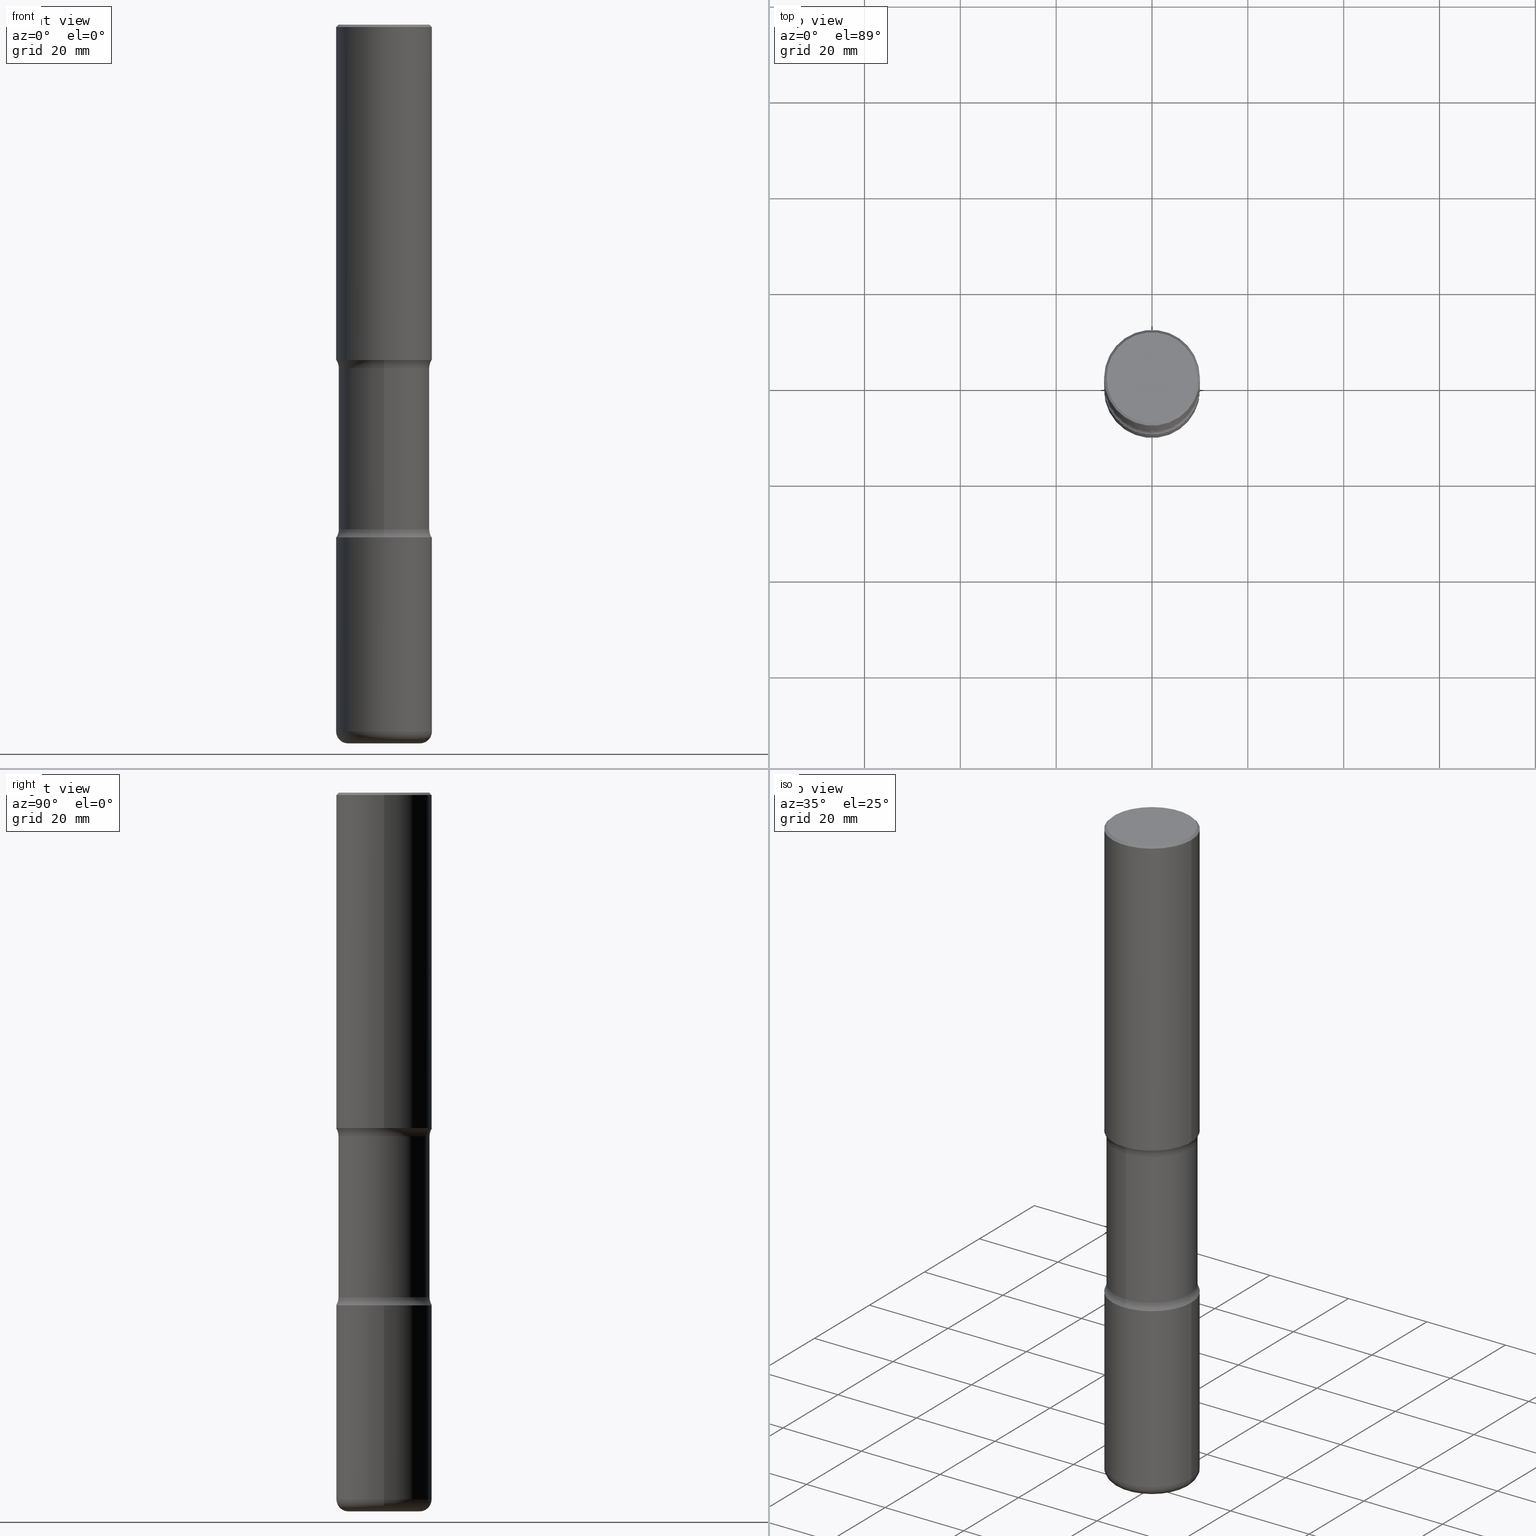
[diagram: canonical four-view strip — front | top / right | iso, engineering-drawing reading convention]
A machine part, canonical four-view strip (front | top / right | iso — engineering-drawing reading convention). The complete STEP part file that produces these views, byte-faithful:
ISO-10303-21;
HEADER;
FILE_DESCRIPTION (( 'STEP AP203' ),
    '1' );
FILE_NAME ('47752.STEP',
    '2024-03-02T08:31:55',
    ( '' ),
    ( '' ),
    'SwSTEP 2.0',
    'SolidWorks 2023',
    '' );
FILE_SCHEMA (( 'CONFIG_CONTROL_DESIGN' ));
ENDSEC;

DATA;
#1 = TOROIDAL_SURFACE ( 'NONE', #370, 0.2953000000000005620, 0.09840000000000062585 ) ;
#2 = DIRECTION ( 'NONE',  ( -2.445468806185136597E-29, 3.491481338843145583E-15, 1.000000000000000000 ) ) ;
#3 = VECTOR ( 'NONE', #381, 39.37007874015748143 ) ;
#4 = ORIENTED_EDGE ( 'NONE', *, *, #406, .T. ) ;
#5 = ORIENTED_EDGE ( 'NONE', *, *, #240, .T. ) ;
#6 = CARTESIAN_POINT ( 'NONE',  ( 0.3936999999999999389, -2.770807688499514945E-15, -0.02000000000000010103 ) ) ;
#7 = VERTEX_POINT ( 'NONE', #16 ) ;
#8 = CC_DESIGN_DATE_AND_TIME_ASSIGNMENT ( #328, #404, ( #331 ) ) ;
#9 = AXIS2_PLACEMENT_3D ( 'NONE', #478, #468, #86 ) ;
#10 = FACE_OUTER_BOUND ( 'NONE', #32, .T. ) ;
#11 = VECTOR ( 'NONE', #540, 39.37007874015748143 ) ;
#12 = ORIENTED_EDGE ( 'NONE', *, *, #421, .T. ) ;
#13 = APPROVAL_STATUS ( 'not_yet_approved' ) ;
#14 = DATE_TIME_ROLE ( 'classification_date' ) ;
#15 = CARTESIAN_POINT ( 'NONE',  ( 2.749192406205187346E-15, 0.3936999999999854505, -4.212600000000000122 ) ) ;
#16 = CARTESIAN_POINT ( 'NONE',  ( -0.3736999999999999211, 2.644447966039788269E-15, 8.537024980182450727E-18 ) ) ;
#17 = ADVANCED_FACE ( 'NONE', ( #305 ), #482, .T. ) ;
#18 = FACE_OUTER_BOUND ( 'NONE', #162, .T. ) ;
#19 = CARTESIAN_POINT ( 'NONE',  ( 1.420108190439770332E-28, -2.027538128279602429E-14, -5.807099999999998374 ) ) ;
#20 = AXIS2_PLACEMENT_3D ( 'NONE', #300, #429, #132 ) ;
#21 = LOCAL_TIME ( 3, 31, 55.00000000000000000, #501 ) ;
#22 = DIRECTION ( 'NONE',  ( 2.499563752616943710E-29, -3.414014296659653741E-15, -1.000000000000000000 ) ) ;
#23 = PERSON_AND_ORGANIZATION ( #36, #419 ) ;
#24 = ADVANCED_FACE ( 'NONE', ( #448 ), #1, .T. ) ;
#25 = CARTESIAN_POINT ( 'NONE',  ( -0.3937000000000002720, -2.048594773559823141E-15, -2.755899999999998240 ) ) ;
#26 = CARTESIAN_POINT ( 'NONE',  ( -2.700978061722587749E-15, -0.3937000000000100419, -2.755899999999997352 ) ) ;
#27 = EDGE_CURVE ( 'NONE', #341, #522, #338, .T. ) ;
#28 = AXIS2_PLACEMENT_3D ( 'NONE', #261, #219, #271 ) ;
#29 = ORIENTED_EDGE ( 'NONE', *, *, #394, .F. ) ;
#30 = DIRECTION ( 'NONE',  ( -1.000000000000000000, 6.982962677686265922E-15, -4.883557194083112340E-29 ) ) ;
#31 = EDGE_CURVE ( 'NONE', #7, #296, #190, .T. ) ;
#32 = EDGE_LOOP ( 'NONE', ( #332, #211, #392, #434 ) ) ;
#33 = DIRECTION ( 'NONE',  ( 2.499563752616943710E-29, -3.414014296659653741E-15, -1.000000000000000000 ) ) ;
#34 = ORIENTED_EDGE ( 'NONE', *, *, #469, .T. ) ;
#35 = DIRECTION ( 'NONE',  ( -2.445468806185136597E-29, 3.491481338843145583E-15, 1.000000000000000000 ) ) ;
#36 = PERSON ( 'UNSPECIFIED', 'UNSPECIFIED', 'UNSPECIFIED', ('UNSPECIFIED'), ('UNSPECIFIED'), ('UNSPECIFIED') ) ;
#37 = CARTESIAN_POINT ( 'NONE',  ( 1.030178189293550378E-28, -1.470821428801063089E-14, -4.212599999999998346 ) ) ;
#38 = CIRCLE ( 'NONE', #354, 0.1249999999999998335 ) ;
#39 = APPROVAL_PERSON_ORGANIZATION ( #193, #517, #56 ) ;
#40 = CARTESIAN_POINT ( 'NONE',  ( -0.2953000000000005620, -1.799934243997356436E-14, -5.905499999999999972 ) ) ;
#41 = ORIENTED_EDGE ( 'NONE', *, *, #58, .F. ) ;
#42 = DIRECTION ( 'NONE',  ( -2.445468806185136877E-29, 3.491481338843145188E-15, 1.000000000000000000 ) ) ;
#43 = CC_DESIGN_PERSON_AND_ORGANIZATION_ASSIGNMENT ( #154, #359, ( #331 ) ) ;
#44 = EDGE_LOOP ( 'NONE', ( #135, #88, #347, #29 ) ) ;
#45 = AXIS2_PLACEMENT_3D ( 'NONE', #401, #183, #460 ) ;
#46 = EDGE_LOOP ( 'NONE', ( #204, #87 ) ) ;
#47 = DIRECTION ( 'NONE',  ( 2.445468806185136597E-29, -3.491481338843145583E-15, -1.000000000000000000 ) ) ;
#48 = ORIENTED_EDGE ( 'NONE', *, *, #170, .F. ) ;
#49 = ADVANCED_FACE ( 'NONE', ( #62 ), #275, .T. ) ;
#50 = CARTESIAN_POINT ( 'NONE',  ( 1.420108190439770332E-28, -2.027538128279602429E-14, -5.807099999999998374 ) ) ;
#51 = DIRECTION ( 'NONE',  ( -2.445468806185136597E-29, 3.491481338843145583E-15, 1.000000000000000000 ) ) ;
#52 = VERTEX_POINT ( 'NONE', #145 ) ;
#53 = CLOSED_SHELL ( 'NONE', ( #130, #207, #153, #292, #110, #508, #514, #92 ) ) ;
#54 = AXIS2_PLACEMENT_3D ( 'NONE', #50, #2, #144 ) ;
#55 = PLANE ( 'NONE',  #263 ) ;
#56 = APPROVAL_ROLE ( '' ) ;
#57 = DIRECTION ( 'NONE',  ( 2.438088387897960049E-29, -3.491481338843145188E-15, -1.000000000000000000 ) ) ;
#58 = EDGE_CURVE ( 'NONE', #335, #483, #198, .T. ) ;
#59 = DIRECTION ( 'NONE',  ( 6.982962677686266711E-15, 1.000000000000000000, -2.921762560068729411E-15 ) ) ;
#60 = DATE_AND_TIME ( #147, #476 ) ;
#61 = DIRECTION ( 'NONE',  ( 1.000000000000000000, -6.860497997771530774E-15, 4.841747577276637457E-29 ) ) ;
#62 = FACE_OUTER_BOUND ( 'NONE', #427, .T. ) ;
#63 = APPROVAL_STATUS ( 'not_yet_approved' ) ;
#64 = CARTESIAN_POINT ( 'NONE',  ( 1.030178189293550378E-28, -1.470821428801063089E-14, -4.212599999999998346 ) ) ;
#65 = CARTESIAN_POINT ( 'NONE',  ( -2.087702828670439639E-46, 2.980686340760894400E-32, 8.537024980200822558E-18 ) ) ;
#66 = AXIS2_PLACEMENT_3D ( 'NONE', #222, #98, #397 ) ;
#67 = AXIS2_PLACEMENT_3D ( 'NONE', #387, #311, #438 ) ;
#68 = DIRECTION ( 'NONE',  ( -2.445468806185136597E-29, 3.491481338843145583E-15, 1.000000000000000000 ) ) ;
#69 = PERSON_AND_ORGANIZATION ( #36, #419 ) ;
#70 = ADVANCED_FACE ( 'NONE', ( #10 ), #346, .T. ) ;
#71 = VERTEX_POINT ( 'NONE', #356 ) ;
#72 = PRODUCT_DEFINITION_SHAPE ( 'NONE', 'NONE',  #331 ) ;
#73 = AXIS2_PLACEMENT_3D ( 'NONE', #320, #51, #544 ) ;
#74 = EDGE_LOOP ( 'NONE', ( #353, #473, #471, #169 ) ) ;
#75 = CC_DESIGN_APPROVAL ( #497, ( #264 ) ) ;
#76 = MANIFOLD_SOLID_BREP ( 'Body-Move/Copy2[4]', #53 ) ;
#77 = CARTESIAN_POINT ( 'NONE',  ( 2.611628041454809941E-15, 0.3739999999999796820, -5.905499999999999972 ) ) ;
#78 = CARTESIAN_POINT ( 'NONE',  ( 6.856494937320590076E-29, -9.925643892983175518E-15, -2.823256588393414201 ) ) ;
#79 = EDGE_CURVE ( 'NONE', #137, #158, #466, .T. ) ;
#80 = ORIENTED_EDGE ( 'NONE', *, *, #27, .F. ) ;
#81 = DIRECTION ( 'NONE',  ( 1.000000000000000000, -6.982962677686266711E-15, 4.876176775795935793E-29 ) ) ;
#82 = CARTESIAN_POINT ( 'NONE',  ( 1.013706345712835491E-28, -1.447304001658688186E-14, -4.145243411606583273 ) ) ;
#83 =( CONVERSION_BASED_UNIT ( 'INCH', #474 ) LENGTH_UNIT ( ) NAMED_UNIT ( #442 ) );
#84 = AXIS2_PLACEMENT_3D ( 'NONE', #160, #462, #417 ) ;
#85 = EDGE_CURVE ( 'NONE', #113, #52, #291, .T. ) ;
#86 = DIRECTION ( 'NONE',  ( 6.982962677686266711E-15, 1.000000000000000000, -2.921762560068729411E-15 ) ) ;
#87 = ORIENTED_EDGE ( 'NONE', *, *, #127, .F. ) ;
#88 = ORIENTED_EDGE ( 'NONE', *, *, #127, .T. ) ;
#89 = ORIENTED_EDGE ( 'NONE', *, *, #85, .F. ) ;
#90 = CARTESIAN_POINT ( 'NONE',  ( 0.3937000000000002720, -1.745740669421571411E-14, -4.212599999999998346 ) ) ;
#91 = AXIS2_PLACEMENT_3D ( 'NONE', #435, #395, #484 ) ;
#92 = ADVANCED_FACE ( 'NONE', ( #451 ), #546, .T. ) ;
#93 = ORIENTED_EDGE ( 'NONE', *, *, #58, .T. ) ;
#94 = CARTESIAN_POINT ( 'NONE',  ( 6.660667374498401538E-29, -9.735019662066511300E-15, -2.755899999999998240 ) ) ;
#95 = ORIENTED_EDGE ( 'NONE', *, *, #324, .T. ) ;
#96 = DIRECTION ( 'NONE',  ( 2.438088387897960049E-29, -3.491481338843145188E-15, -1.000000000000000000 ) ) ;
#97 = FACE_OUTER_BOUND ( 'NONE', #46, .T. ) ;
#98 = DIRECTION ( 'NONE',  ( 2.499563752616943710E-29, -3.414014296659653741E-15, -1.000000000000000000 ) ) ;
#99 = FACE_OUTER_BOUND ( 'NONE', #115, .T. ) ;
#100 = DIRECTION ( 'NONE',  ( 1.000000000000000000, 0.000000000000000000, 0.000000000000000000 ) ) ;
#101 = CARTESIAN_POINT ( 'NONE',  ( 6.739467482965614869E-29, -9.622173421717819657E-15, -2.755899999999998240 ) ) ;
#102 = PLANE ( 'NONE',  #301 ) ;
#103 = AXIS2_PLACEMENT_3D ( 'NONE', #269, #447, #224 ) ;
#104 = VECTOR ( 'NONE', #177, 39.37007874015748143 ) ;
#105 = CALENDAR_DATE ( 2024, 2, 3 ) ;
#106 = CARTESIAN_POINT ( 'NONE',  ( -2.633402156444536217E-15, -0.3740000000000101577, -2.823256588393413313 ) ) ;
#107 = COORDINATED_UNIVERSAL_TIME_OFFSET ( 5, 0, .BEHIND. ) ;
#108 = AXIS2_PLACEMENT_3D ( 'NONE', #534, #315, #493 ) ;
#109 = CIRCLE ( 'NONE', #91, 0.1249999999999999029 ) ;
#110 = ADVANCED_FACE ( 'NONE', ( #99 ), #55, .F. ) ;
#111 = CALENDAR_DATE ( 2024, 2, 3 ) ;
#112 = DESIGN_CONTEXT ( 'detailed design', #426, 'design' ) ;
#113 = VERTEX_POINT ( 'NONE', #358 ) ;
#114 = APPROVAL ( #13, 'UNSPECIFIED' ) ;
#115 = EDGE_LOOP ( 'NONE', ( #41, #436 ) ) ;
#116 = CARTESIAN_POINT ( 'NONE',  ( 1.030178189293550378E-28, -1.470821428801063089E-14, -4.212599999999998346 ) ) ;
#117 = ADVANCED_FACE ( 'NONE', ( #407 ), #229, .T. ) ;
#118 = FACE_OUTER_BOUND ( 'NONE', #477, .T. ) ;
#119 = AXIS2_PLACEMENT_3D ( 'NONE', #208, #171, #294 ) ;
#120 = EDGE_LOOP ( 'NONE', ( #95, #532 ) ) ;
#121 = AXIS2_PLACEMENT_3D ( 'NONE', #64, #369, #228 ) ;
#122 = CARTESIAN_POINT ( 'NONE',  ( 2.611628041454766160E-15, 0.3739999999999856772, -4.145243411606584161 ) ) ;
#123 = CARTESIAN_POINT ( 'NONE',  ( 1.013341980608738414E-28, -1.447825793226129018E-14, -4.145243411606583273 ) ) ;
#124 = EDGE_CURVE ( 'NONE', #166, #350, #156, .T. ) ;
#125 = ORIENTED_EDGE ( 'NONE', *, *, #326, .T. ) ;
#126 = CARTESIAN_POINT ( 'NONE',  ( -0.3937000000000003830, 2.797406750687517153E-15, -1.936584745033358137E-29 ) ) ;
#127 = EDGE_CURVE ( 'NONE', #158, #137, #138, .T. ) ;
#128 = CARTESIAN_POINT ( 'NONE',  ( 2.611628041454733028E-15, 0.3739999999999901736, -2.823256588393415534 ) ) ;
#129 = ORIENTED_EDGE ( 'NONE', *, *, #186, .T. ) ;
#130 = ADVANCED_FACE ( 'NONE', ( #134 ), #463, .T. ) ;
#131 = AXIS2_PLACEMENT_3D ( 'NONE', #548, #155, #237 ) ;
#132 = DIRECTION ( 'NONE',  ( 1.000000000000000000, -6.982962677686257244E-15, 0.000000000000000000 ) ) ;
#133 = ORIENTED_EDGE ( 'NONE', *, *, #550, .F. ) ;
#134 = FACE_OUTER_BOUND ( 'NONE', #380, .T. ) ;
#135 = ORIENTED_EDGE ( 'NONE', *, *, #469, .F. ) ;
#136 = CARTESIAN_POINT ( 'NONE',  ( -2.700978061722549884E-15, -0.3937000000000149269, -4.212599999999997458 ) ) ;
#137 = VERTEX_POINT ( 'NONE', #316 ) ;
#138 = CIRCLE ( 'NONE', #45, 0.3937000000000002164 ) ;
#139 = DIRECTION ( 'NONE',  ( 1.000000000000000000, -6.982962677686266711E-15, 4.876212485538976239E-29 ) ) ;
#140 = ADVANCED_BREP_SHAPE_REPRESENTATION ( '47752', ( #245, #257, #76, #181 ), #521 ) ;
#141 = CONICAL_SURFACE ( 'NONE', #531, 0.3936999999999999389, 0.7853981633974471688 ) ;
#142 = DIRECTION ( 'NONE',  ( 2.499563752616943710E-29, -3.414014296659653741E-15, -1.000000000000000000 ) ) ;
#143 = ORIENTED_EDGE ( 'NONE', *, *, #485, .F. ) ;
#144 = DIRECTION ( 'NONE',  ( 1.000000000000000000, -6.982962677686269866E-15, 0.000000000000000000 ) ) ;
#145 = CARTESIAN_POINT ( 'NONE',  ( -0.3936999999999999389, 2.679362779428219524E-15, -0.02000000000000010103 ) ) ;
#146 = DIRECTION ( 'NONE',  ( 6.982962677686266711E-15, 1.000000000000000000, -2.921762560068729411E-15 ) ) ;
#147 = CALENDAR_DATE ( 2024, 2, 3 ) ;
#148 = CARTESIAN_POINT ( 'NONE',  ( -2.565826251166408560E-15, -0.3740000000000206493, -5.905499999999997307 ) ) ;
#149 = PERSON_AND_ORGANIZATION ( #36, #419 ) ;
#150 = CIRCLE ( 'NONE', #486, 0.3937000000000004940 ) ;
#151 = TOROIDAL_SURFACE ( 'NONE', #439, 0.4990000000000002212, 0.1249999999999998751 ) ;
#152 = PERSON_AND_ORGANIZATION_ROLE ( 'classification_officer' ) ;
#153 = ADVANCED_FACE ( 'NONE', ( #494 ), #389, .F. ) ;
#154 = PERSON_AND_ORGANIZATION ( #36, #419 ) ;
#155 = DIRECTION ( 'NONE',  ( -2.445468806185136597E-29, 3.491481338843145583E-15, 1.000000000000000000 ) ) ;
#156 = CIRCLE ( 'NONE', #103, 0.09840000000000061198 ) ;
#157 = CONICAL_SURFACE ( 'NONE', #167, 0.3936999999999999389, 0.7853981633974471688 ) ;
#158 = VERTEX_POINT ( 'NONE', #25 ) ;
#159 = EDGE_CURVE ( 'NONE', #461, #350, #150, .T. ) ;
#160 = CARTESIAN_POINT ( 'NONE',  ( 1.444171603492632270E-28, -2.061894304653819197E-14, -5.905499999999999972 ) ) ;
#161 = DIRECTION ( 'NONE',  ( -1.000000000000000000, 6.982962677686265922E-15, -4.876176775795935793E-29 ) ) ;
#162 = EDGE_LOOP ( 'NONE', ( #349, #254 ) ) ;
#163 = ADVANCED_FACE ( 'NONE', ( #553 ), #342, .F. ) ;
#164 = CARTESIAN_POINT ( 'NONE',  ( 1.030178189293550378E-28, -1.470821428801063089E-14, -4.212599999999998346 ) ) ;
#165 = AXIS2_PLACEMENT_3D ( 'NONE', #65, #453, #456 ) ;
#166 = VERTEX_POINT ( 'NONE', #40 ) ;
#167 = AXIS2_PLACEMENT_3D ( 'NONE', #248, #255, #251 ) ;
#168 = CARTESIAN_POINT ( 'NONE',  ( 1.444171603492632270E-28, -2.061894304653819197E-14, -5.905499999999999972 ) ) ;
#169 = ORIENTED_EDGE ( 'NONE', *, *, #535, .F. ) ;
#170 = EDGE_CURVE ( 'NONE', #166, #71, #180, .T. ) ;
#171 = DIRECTION ( 'NONE',  ( 2.499563752616943710E-29, -3.414014296659653741E-15, -1.000000000000000000 ) ) ;
#172 = EDGE_LOOP ( 'NONE', ( #217, #12 ) ) ;
#173 = AXIS2_PLACEMENT_3D ( 'NONE', #221, #265, #218 ) ;
#174 = PLANE ( 'NONE',  #235 ) ;
#175 = ORIENTED_EDGE ( 'NONE', *, *, #333, .F. ) ;
#176 = ORIENTED_EDGE ( 'NONE', *, *, #406, .F. ) ;
#177 = DIRECTION ( 'NONE',  ( 0.7071067811865466846, -7.319954787623252890E-15, -0.7071067811865483499 ) ) ;
#178 = ORIENTED_EDGE ( 'NONE', *, *, #368, .T. ) ;
#179 = AXIS2_PLACEMENT_3D ( 'NONE', #410, #22, #59 ) ;
#180 = CIRCLE ( 'NONE', #215, 0.2953000000000005620 ) ;
#181 = AXIS2_PLACEMENT_3D ( 'NONE', #454, #280, #100 ) ;
#182 = VERTEX_POINT ( 'NONE', #128 ) ;
#183 = DIRECTION ( 'NONE',  ( -2.445468806185136597E-29, 3.491481338843145583E-15, 1.000000000000000000 ) ) ;
#184 = CALENDAR_DATE ( 2024, 2, 3 ) ;
#185 = FACE_OUTER_BOUND ( 'NONE', #306, .T. ) ;
#186 = EDGE_CURVE ( 'NONE', #522, #560, #505, .T. ) ;
#187 = DATE_AND_TIME ( #184, #210 ) ;
#188 = PLANE ( 'NONE',  #121 ) ;
#189 = DIRECTION ( 'NONE',  ( 2.499563752616943710E-29, -3.414014296659653741E-15, -1.000000000000000000 ) ) ;
#190 = CIRCLE ( 'NONE', #165, 0.3736999999999999211 ) ;
#191 = DIRECTION ( 'NONE',  ( 1.000000000000000000, -6.860497997771530774E-15, 4.841747577276637457E-29 ) ) ;
#192 = CIRCLE ( 'NONE', #310, 0.3937000000000002720 ) ;
#193 = PERSON_AND_ORGANIZATION ( #36, #419 ) ;
#194 = EDGE_CURVE ( 'NONE', #560, #522, #378, .T. ) ;
#195 = MECHANICAL_CONTEXT ( 'NONE', #209, 'mechanical' ) ;
#196 = CARTESIAN_POINT ( 'NONE',  ( 6.856494937320590076E-29, -9.925643892983175518E-15, -2.823256588393414201 ) ) ;
#197 = CARTESIAN_POINT ( 'NONE',  ( -3.423388500887925735E-15, -0.4990000000000099356, -2.823256588393412425 ) ) ;
#198 = CIRCLE ( 'NONE', #66, 0.3937000000000004385 ) ;
#199 = EDGE_CURVE ( 'NONE', #71, #461, #541, .T. ) ;
#200 = ORIENTED_EDGE ( 'NONE', *, *, #481, .T. ) ;
#201 = ORIENTED_EDGE ( 'NONE', *, *, #324, .F. ) ;
#202 = DIRECTION ( 'NONE',  ( 6.982962677686265922E-15, 1.000000000000000000, -3.414014296659653741E-15 ) ) ;
#203 = TOROIDAL_SURFACE ( 'NONE', #529, 0.4990000000000002212, 0.1249999999999998751 ) ;
#204 = ORIENTED_EDGE ( 'NONE', *, *, #79, .F. ) ;
#205 = CIRCLE ( 'NONE', #379, 0.1249999999999998335 ) ;
#206 = DIRECTION ( 'NONE',  ( 6.982962677686265922E-15, 1.000000000000000000, -2.775563112689114723E-15 ) ) ;
#207 = ADVANCED_FACE ( 'NONE', ( #303 ), #203, .F. ) ;
#208 = CARTESIAN_POINT ( 'NONE',  ( 1.030178189293550378E-28, -1.470821428801063089E-14, -4.212599999999998346 ) ) ;
#209 = APPLICATION_CONTEXT ( 'configuration controlled 3d designs of mechanical parts and assemblies' ) ;
#210 = LOCAL_TIME ( 3, 31, 55.00000000000000000, #408 ) ;
#211 = ORIENTED_EDGE ( 'NONE', *, *, #124, .T. ) ;
#212 = DIRECTION ( 'NONE',  ( -2.445468806185136597E-29, 3.491481338843145583E-15, 1.000000000000000000 ) ) ;
#213 = ORIENTED_EDGE ( 'NONE', *, *, #31, .F. ) ;
#214 = ORIENTED_EDGE ( 'NONE', *, *, #124, .F. ) ;
#215 = AXIS2_PLACEMENT_3D ( 'NONE', #168, #212, #520 ) ;
#216 = CIRCLE ( 'NONE', #67, 0.3937000000000002720 ) ;
#217 = ORIENTED_EDGE ( 'NONE', *, *, #31, .T. ) ;
#218 = DIRECTION ( 'NONE',  ( 1.000000000000000000, -6.982962677686266711E-15, 0.000000000000000000 ) ) ;
#219 = DIRECTION ( 'NONE',  ( -2.445468806185136597E-29, 3.491481338843145583E-15, 1.000000000000000000 ) ) ;
#220 = ORIENTED_EDGE ( 'NONE', *, *, #481, .F. ) ;
#221 = CARTESIAN_POINT ( 'NONE',  ( 4.890937612370298557E-31, -6.982962677686327354E-17, -0.02000000000000010103 ) ) ;
#222 = CARTESIAN_POINT ( 'NONE',  ( 6.660667374498401538E-29, -9.735019662066511300E-15, -2.755899999999998240 ) ) ;
#223 = ORIENTED_EDGE ( 'NONE', *, *, #170, .T. ) ;
#224 = DIRECTION ( 'NONE',  ( -1.000000000000000000, 7.105427357600994759E-15, 0.000000000000000000 ) ) ;
#225 = AXIS2_PLACEMENT_3D ( 'NONE', #480, #533, #259 ) ;
#226 = DIRECTION ( 'NONE',  ( 6.982962677686265922E-15, 1.000000000000000000, -3.414014296659653741E-15 ) ) ;
#227 = CALENDAR_DATE ( 2024, 2, 3 ) ;
#228 = DIRECTION ( 'NONE',  ( -6.982962677686265922E-15, -1.000000000000000000, 3.414014296659653741E-15 ) ) ;
#229 = PLANE ( 'NONE',  #430 ) ;
#230 = APPROVAL_ROLE ( '' ) ;
#231 = CARTESIAN_POINT ( 'NONE',  ( 0.3937000000000008271, -2.302457368900111381E-14, -5.807099999999998374 ) ) ;
#232 = EDGE_CURVE ( 'NONE', #182, #490, #282, .T. ) ;
#233 = APPROVAL_DATE_TIME ( #284, #497 ) ;
#234 = FACE_OUTER_BOUND ( 'NONE', #268, .T. ) ;
#235 = AXIS2_PLACEMENT_3D ( 'NONE', #492, #319, #270 ) ;
#236 = PERSON_AND_ORGANIZATION ( #36, #419 ) ;
#237 = DIRECTION ( 'NONE',  ( 1.000000000000000000, -6.982962677686266711E-15, 4.876176775795935793E-29 ) ) ;
#238 = DATE_AND_TIME ( #105, #21 ) ;
#239 = FACE_OUTER_BOUND ( 'NONE', #74, .T. ) ;
#240 = EDGE_CURVE ( 'NONE', #350, #444, #551, .T. ) ;
#241 = FACE_OUTER_BOUND ( 'NONE', #44, .T. ) ;
#242 = AXIS2_PLACEMENT_3D ( 'NONE', #278, #191, #538 ) ;
#243 = APPROVAL_PERSON_ORGANIZATION ( #149, #497, #230 ) ;
#244 = EDGE_LOOP ( 'NONE', ( #143, #399, #256, #93 ) ) ;
#245 = MANIFOLD_SOLID_BREP ( 'Body-Move/Copy2[1]', #412 ) ;
#246 = EDGE_CURVE ( 'NONE', #519, #341, #329, .T. ) ;
#247 = ORIENTED_EDGE ( 'NONE', *, *, #159, .T. ) ;
#248 = CARTESIAN_POINT ( 'NONE',  ( 4.890937612370298557E-31, -6.982962677686327354E-17, -0.02000000000000010103 ) ) ;
#249 = ORIENTED_EDGE ( 'NONE', *, *, #550, .T. ) ;
#250 = ADVANCED_FACE ( 'NONE', ( #241 ), #420, .T. ) ;
#251 = DIRECTION ( 'NONE',  ( -1.000000000000000000, 6.982962677686266711E-15, 0.000000000000000000 ) ) ;
#252 = AXIS2_PLACEMENT_3D ( 'NONE', #536, #142, #146 ) ;
#253 = VECTOR ( 'NONE', #526, 39.37007874015748143 ) ;
#254 = ORIENTED_EDGE ( 'NONE', *, *, #556, .T. ) ;
#255 = DIRECTION ( 'NONE',  ( 2.445468806185136597E-29, -3.491481338843145583E-15, -1.000000000000000000 ) ) ;
#256 = ORIENTED_EDGE ( 'NONE', *, *, #260, .T. ) ;
#257 = MANIFOLD_SOLID_BREP ( 'Body-Move/Copy2[2]', #398 ) ;
#258 = ORIENTED_EDGE ( 'NONE', *, *, #246, .F. ) ;
#259 = DIRECTION ( 'NONE',  ( 6.982962677686266711E-15, 1.000000000000000000, -2.921762560068729411E-15 ) ) ;
#260 = EDGE_CURVE ( 'NONE', #182, #335, #38, .T. ) ;
#261 = CARTESIAN_POINT ( 'NONE',  ( 0.000000000000000000, 0.000000000000000000, 0.000000000000000000 ) ) ;
#262 = ORIENTED_EDGE ( 'NONE', *, *, #194, .T. ) ;
#263 = AXIS2_PLACEMENT_3D ( 'NONE', #500, #313, #226 ) ;
#264 = PRODUCT_DEFINITION_FORMATION_WITH_SPECIFIED_SOURCE ( 'ANY', '', #414, .NOT_KNOWN. ) ;
#265 = DIRECTION ( 'NONE',  ( -2.445468806185136597E-29, 3.491481338843145583E-15, 1.000000000000000000 ) ) ;
#266 = ORIENTED_EDGE ( 'NONE', *, *, #27, .T. ) ;
#267 = DIRECTION ( 'NONE',  ( 2.499563752616943710E-29, -3.414014296659653741E-15, -1.000000000000000000 ) ) ;
#268 = EDGE_LOOP ( 'NONE', ( #80, #258, #178, #262 ) ) ;
#269 = CARTESIAN_POINT ( 'NONE',  ( -0.2953000000000005620, -1.817714858409644444E-14, -5.807099999999998374 ) ) ;
#270 = DIRECTION ( 'NONE',  ( 1.000000000000000000, -6.982962677686265922E-15, 4.876176775795935793E-29 ) ) ;
#271 = DIRECTION ( 'NONE',  ( 1.000000000000000000, -6.982962677686266711E-15, 4.876176775795935793E-29 ) ) ;
#272 = AXIS2_PLACEMENT_3D ( 'NONE', #101, #340, #509 ) ;
#273 = CIRCLE ( 'NONE', #84, 0.2953000000000005620 ) ;
#274 = CARTESIAN_POINT ( 'NONE',  ( 2.609533152651356620E-15, 0.3736999999999999211, -1.300498063835582814E-15 ) ) ;
#275 = CYLINDRICAL_SURFACE ( 'NONE', #73, 0.3937000000000001054 ) ;
#276 = PERSON_AND_ORGANIZATION ( #36, #419 ) ;
#277 = CARTESIAN_POINT ( 'NONE',  ( -0.3937000000000001054, 2.797406750687515181E-15, -1.936584745033357016E-29 ) ) ;
#278 = CARTESIAN_POINT ( 'NONE',  ( -3.423388500887893787E-15, -0.4990000000000146541, -4.145243411606581496 ) ) ;
#279 = DIRECTION ( 'NONE',  ( -1.000000000000000000, 6.982962677686265922E-15, -4.876176775795935793E-29 ) ) ;
#280 = DIRECTION ( 'NONE',  ( 0.000000000000000000, 0.000000000000000000, 1.000000000000000000 ) ) ;
#281 = CARTESIAN_POINT ( 'NONE',  ( 0.3937000000000001054, -2.749192406205084005E-15, 1.919750796630860452E-29 ) ) ;
#282 = CIRCLE ( 'NONE', #9, 0.3740000000000001656 ) ;
#283 = CIRCLE ( 'NONE', #400, 0.3937000000000004385 ) ;
#284 = DATE_AND_TIME ( #111, #322 ) ;
#285 = ORIENTED_EDGE ( 'NONE', *, *, #85, .T. ) ;
#286 = ADVANCED_FACE ( 'NONE', ( #118 ), #157, .T. ) ;
#287 = ORIENTED_EDGE ( 'NONE', *, *, #79, .T. ) ;
#288 = DIRECTION ( 'NONE',  ( 1.000000000000000000, -6.982962677686269077E-15, 0.000000000000000000 ) ) ;
#289 = CC_DESIGN_PERSON_AND_ORGANIZATION_ASSIGNMENT ( #539, #152, ( #467 ) ) ;
#290 = FACE_OUTER_BOUND ( 'NONE', #244, .T. ) ;
#291 = CIRCLE ( 'NONE', #449, 0.3936999999999999389 ) ;
#292 = ADVANCED_FACE ( 'NONE', ( #290 ), #450, .F. ) ;
#293 = CIRCLE ( 'NONE', #225, 0.3740000000000001656 ) ;
#294 = DIRECTION ( 'NONE',  ( 6.982962677686265922E-15, 1.000000000000000000, -2.775563112689114723E-15 ) ) ;
#295 = EDGE_CURVE ( 'NONE', #461, #302, #433, .T. ) ;
#296 = VERTEX_POINT ( 'NONE', #402 ) ;
#297 =( LENGTH_UNIT ( ) NAMED_UNIT ( * ) SI_UNIT ( $, .METRE. ) );
#298 = CARTESIAN_POINT ( 'NONE',  ( 3.484498376165515577E-15, 0.4989999999999901736, -2.823256588393415534 ) ) ;
#299 = EDGE_LOOP ( 'NONE', ( #214, #223, #446, #424 ) ) ;
#300 = CARTESIAN_POINT ( 'NONE',  ( 0.2953000000000005620, -2.233745016151678477E-14, -5.807099999999998374 ) ) ;
#301 = AXIS2_PLACEMENT_3D ( 'NONE', #274, #57, #405 ) ;
#302 = VERTEX_POINT ( 'NONE', #90 ) ;
#303 = FACE_OUTER_BOUND ( 'NONE', #552, .T. ) ;
#304 = ORIENTED_EDGE ( 'NONE', *, *, #194, .F. ) ;
#305 = FACE_OUTER_BOUND ( 'NONE', #488, .T. ) ;
#306 = EDGE_LOOP ( 'NONE', ( #479, #4, #285, #220 ) ) ;
#307 = DIRECTION ( 'NONE',  ( -1.000000000000000000, 6.982962677686266711E-15, 0.000000000000000000 ) ) ;
#308 = ORIENTED_EDGE ( 'NONE', *, *, #368, .F. ) ;
#309 = AXIS2_PLACEMENT_3D ( 'NONE', #472, #516, #518 ) ;
#310 = AXIS2_PLACEMENT_3D ( 'NONE', #37, #374, #206 ) ;
#311 = DIRECTION ( 'NONE',  ( -2.445468806185136597E-29, 3.491481338843145583E-15, 1.000000000000000000 ) ) ;
#312 = ORIENTED_EDGE ( 'NONE', *, *, #485, .T. ) ;
#313 = DIRECTION ( 'NONE',  ( 2.499563752616943430E-29, -3.414014296659653741E-15, -1.000000000000000000 ) ) ;
#314 = CARTESIAN_POINT ( 'NONE',  ( -0.3937000000000008271, -1.747797453210850398E-14, -5.807099999999998374 ) ) ;
#315 = DIRECTION ( 'NONE',  ( -2.445468806185136597E-29, 3.491481338843145583E-15, 1.000000000000000000 ) ) ;
#316 = CARTESIAN_POINT ( 'NONE',  ( 0.3937000000000002164, -1.237136582792290287E-14, -2.755899999999998240 ) ) ;
#317 = CC_DESIGN_DATE_AND_TIME_ASSIGNMENT ( #238, #14, ( #467 ) ) ;
#318 = SHAPE_DEFINITION_REPRESENTATION ( #72, #140 ) ;
#319 = DIRECTION ( 'NONE',  ( -2.438088387897960049E-29, 3.491481338843145188E-15, 1.000000000000000000 ) ) ;
#320 = CARTESIAN_POINT ( 'NONE',  ( 0.000000000000000000, 0.000000000000000000, 0.000000000000000000 ) ) ;
#321 = APPLICATION_PROTOCOL_DEFINITION ( 'international standard', 'config_control_design', 1994, #426 ) ;
#322 = LOCAL_TIME ( 3, 31, 55.00000000000000000, #506 ) ;
#323 = LINE ( 'NONE', #277, #431 ) ;
#324 = EDGE_CURVE ( 'NONE', #302, #444, #216, .T. ) ;
#325 = APPROVAL_PERSON_ORGANIZATION ( #23, #114, #545 ) ;
#326 = EDGE_CURVE ( 'NONE', #490, #522, #355, .T. ) ;
#327 = CARTESIAN_POINT ( 'NONE',  ( 1.013706345712835491E-28, -1.447304001658688186E-14, -4.145243411606583273 ) ) ;
#328 = DATE_AND_TIME ( #227, #339 ) ;
#329 = CIRCLE ( 'NONE', #119, 0.3937000000000002720 ) ;
#330 = VECTOR ( 'NONE', #416, 39.37007874015748143 ) ;
#331 = PRODUCT_DEFINITION ( 'UNKNOWN', '', #264, #112 ) ;
#332 = ORIENTED_EDGE ( 'NONE', *, *, #530, .T. ) ;
#333 = EDGE_CURVE ( 'NONE', #490, #182, #293, .T. ) ;
#334 = CARTESIAN_POINT ( 'NONE',  ( 0.000000000000000000, 0.000000000000000000, 0.000000000000000000 ) ) ;
#335 = VERTEX_POINT ( 'NONE', #489 ) ;
#336 = CC_DESIGN_PERSON_AND_ORGANIZATION_ASSIGNMENT ( #236, #452, ( #414 ) ) ;
#337 = DIRECTION ( 'NONE',  ( 2.438088387897960049E-29, -3.491481338843145188E-15, -1.000000000000000000 ) ) ;
#338 = CIRCLE ( 'NONE', #242, 0.1249999999999999029 ) ;
#339 = LOCAL_TIME ( 3, 31, 55.00000000000000000, #107 ) ;
#340 = DIRECTION ( 'NONE',  ( -2.445468806185136597E-29, 3.491481338843145583E-15, 1.000000000000000000 ) ) ;
#341 = VERTEX_POINT ( 'NONE', #136 ) ;
#342 = PLANE ( 'NONE',  #554 ) ;
#343 = EDGE_CURVE ( 'NONE', #350, #461, #542, .T. ) ;
#344 = ORIENTED_EDGE ( 'NONE', *, *, #556, .F. ) ;
#345 = DIRECTION ( 'NONE',  ( 1.000000000000000000, -6.982962677686269866E-15, 0.000000000000000000 ) ) ;
#346 = TOROIDAL_SURFACE ( 'NONE', #108, 0.2953000000000005620, 0.09840000000000062585 ) ;
#347 = ORIENTED_EDGE ( 'NONE', *, *, #428, .T. ) ;
#348 = CARTESIAN_POINT ( 'NONE',  ( 4.890937612370298557E-31, -6.982962677686327354E-17, -0.02000000000000010103 ) ) ;
#349 = ORIENTED_EDGE ( 'NONE', *, *, #246, .T. ) ;
#350 = VERTEX_POINT ( 'NONE', #314 ) ;
#351 = CARTESIAN_POINT ( 'NONE',  ( -2.087702828670439639E-46, 2.980686340760894400E-32, 8.537024980200822558E-18 ) ) ;
#352 = ADVANCED_FACE ( 'NONE', ( #97 ), #174, .F. ) ;
#353 = ORIENTED_EDGE ( 'NONE', *, *, #240, .F. ) ;
#354 = AXIS2_PLACEMENT_3D ( 'NONE', #298, #30, #510 ) ;
#355 = LINE ( 'NONE', #148, #253 ) ;
#356 = CARTESIAN_POINT ( 'NONE',  ( 0.2953000000000005620, -2.268101192525895245E-14, -5.905499999999999972 ) ) ;
#357 = APPROVAL_DATE_TIME ( #187, #114 ) ;
#358 = CARTESIAN_POINT ( 'NONE',  ( 0.3936999999999999389, -2.770807688499514945E-15, -0.02000000000000010103 ) ) ;
#359 = PERSON_AND_ORGANIZATION_ROLE ( 'creator' ) ;
#360 = DIRECTION ( 'NONE',  ( 6.982962677686265922E-15, 1.000000000000000000, -3.414014296659653741E-15 ) ) ;
#361 = PRODUCT_RELATED_PRODUCT_CATEGORY ( 'detail', '', ( #414 ) ) ;
#362 = APPLICATION_PROTOCOL_DEFINITION ( 'international standard', 'config_control_design', 1994, #209 ) ;
#363 = ADVANCED_FACE ( 'NONE', ( #185 ), #141, .T. ) ;
#364 = VECTOR ( 'NONE', #559, 39.37007874015748143 ) ;
#365 = CIRCLE ( 'NONE', #173, 0.3936999999999999389 ) ;
#366 = APPROVAL_DATE_TIME ( #60, #517 ) ;
#367 = APPROVAL_STATUS ( 'not_yet_approved' ) ;
#368 = EDGE_CURVE ( 'NONE', #519, #560, #109, .T. ) ;
#369 = DIRECTION ( 'NONE',  ( -2.499563752616943430E-29, 3.414014296659653741E-15, 1.000000000000000000 ) ) ;
#370 = AXIS2_PLACEMENT_3D ( 'NONE', #19, #403, #503 ) ;
#371 = CIRCLE ( 'NONE', #555, 0.3736999999999999211 ) ;
#372 = DIRECTION ( 'NONE',  ( 2.499563752616943710E-29, -3.414014296659653741E-15, -1.000000000000000000 ) ) ;
#373 = ORIENTED_EDGE ( 'NONE', *, *, #394, .T. ) ;
#374 = DIRECTION ( 'NONE',  ( 2.499563752616943710E-29, -3.414014296659653741E-15, -1.000000000000000000 ) ) ;
#375 = CARTESIAN_POINT ( 'NONE',  ( 0.3937000000000003830, -2.749192406205085978E-15, 1.919750796630861853E-29 ) ) ;
#376 = DIRECTION ( 'NONE',  ( -2.445468806185136597E-29, 3.491481338843145583E-15, 1.000000000000000000 ) ) ;
#377 = DIRECTION ( 'NONE',  ( 2.499563752616943710E-29, -3.414014296659653741E-15, -1.000000000000000000 ) ) ;
#378 = CIRCLE ( 'NONE', #457, 0.3740000000000001656 ) ;
#379 = AXIS2_PLACEMENT_3D ( 'NONE', #197, #61, #413 ) ;
#380 = EDGE_LOOP ( 'NONE', ( #396, #125, #304, #133 ) ) ;
#381 = DIRECTION ( 'NONE',  ( 2.499563752616943710E-29, -3.414014296659653741E-15, -1.000000000000000000 ) ) ;
#382 = CARTESIAN_POINT ( 'NONE',  ( 1.420108190439770332E-28, -2.027538128279602429E-14, -5.807099999999998374 ) ) ;
#383 = ORIENTED_EDGE ( 'NONE', *, *, #326, .F. ) ;
#384 = DIRECTION ( 'NONE',  ( 2.499563752616943710E-29, -3.414014296659653741E-15, -1.000000000000000000 ) ) ;
#385 = CC_DESIGN_PERSON_AND_ORGANIZATION_ASSIGNMENT ( #69, #411, ( #264 ) ) ;
#386 = EDGE_LOOP ( 'NONE', ( #383, #422, #249, #557 ) ) ;
#387 = CARTESIAN_POINT ( 'NONE',  ( 1.030178189293550378E-28, -1.470821428801063089E-14, -4.212599999999998346 ) ) ;
#388 = CC_DESIGN_SECURITY_CLASSIFICATION ( #467, ( #264 ) ) ;
#389 = TOROIDAL_SURFACE ( 'NONE', #418, 0.4990000000000000546, 0.1249999999999998612 ) ;
#390 = CC_DESIGN_PERSON_AND_ORGANIZATION_ASSIGNMENT ( #276, #543, ( #264 ) ) ;
#391 = VECTOR ( 'NONE', #42, 39.37007874015748143 ) ;
#392 = ORIENTED_EDGE ( 'NONE', *, *, #159, .F. ) ;
#393 = EDGE_LOOP ( 'NONE', ( #175, #312, #464, #525 ) ) ;
#394 = EDGE_CURVE ( 'NONE', #52, #113, #365, .T. ) ;
#395 = DIRECTION ( 'NONE',  ( -1.000000000000000000, 6.982962677686265922E-15, -4.883557194083112340E-29 ) ) ;
#396 = ORIENTED_EDGE ( 'NONE', *, *, #232, .T. ) ;
#397 = DIRECTION ( 'NONE',  ( 6.982962677686265922E-15, 1.000000000000000000, -2.775563112689113540E-15 ) ) ;
#398 = CLOSED_SHELL ( 'NONE', ( #49, #363, #286, #523, #352, #250 ) ) ;
#399 = ORIENTED_EDGE ( 'NONE', *, *, #232, .F. ) ;
#400 = AXIS2_PLACEMENT_3D ( 'NONE', #94, #267, #445 ) ;
#401 = CARTESIAN_POINT ( 'NONE',  ( 6.739467482965614869E-29, -9.622173421717819657E-15, -2.755899999999998240 ) ) ;
#402 = CARTESIAN_POINT ( 'NONE',  ( 0.3736999999999999211, -2.667287895133367964E-15, 8.537024980219274507E-18 ) ) ;
#403 = DIRECTION ( 'NONE',  ( -2.445468806185136597E-29, 3.491481338843145583E-15, 1.000000000000000000 ) ) ;
#404 = DATE_TIME_ROLE ( 'creation_date' ) ;
#405 = DIRECTION ( 'NONE',  ( -1.000000000000000000, 6.982962677686265922E-15, -4.876176775795935793E-29 ) ) ;
#406 = EDGE_CURVE ( 'NONE', #296, #113, #524, .T. ) ;
#407 = FACE_OUTER_BOUND ( 'NONE', #527, .T. ) ;
#408 = COORDINATED_UNIVERSAL_TIME_OFFSET ( 5, 0, .BEHIND. ) ;
#409 = CYLINDRICAL_SURFACE ( 'NONE', #131, 0.3937000000000003830 ) ;
#410 = CARTESIAN_POINT ( 'NONE',  ( 1.453329336974072664E-28, -2.048779909082575425E-14, -5.905499999999998195 ) ) ;
#411 = PERSON_AND_ORGANIZATION_ROLE ( 'creator' ) ;
#412 = CLOSED_SHELL ( 'NONE', ( #17, #70, #117, #24, #440, #163 ) ) ;
#413 = DIRECTION ( 'NONE',  ( 6.860497997771531562E-15, 1.000000000000000000, 0.000000000000000000 ) ) ;
#414 = PRODUCT ( '47752', '47752', '', ( #195 ) ) ;
#415 = CARTESIAN_POINT ( 'NONE',  ( -0.3936999999999999389, 2.679362779428219524E-15, -0.02000000000000010103 ) ) ;
#416 = DIRECTION ( 'NONE',  ( -0.7071067811865466846, 2.468850131082247989E-15, -0.7071067811865483499 ) ) ;
#417 = DIRECTION ( 'NONE',  ( 1.000000000000000000, -6.982962677686270655E-15, 0.000000000000000000 ) ) ;
#418 = AXIS2_PLACEMENT_3D ( 'NONE', #196, #384, #558 ) ;
#419 = ORGANIZATION ( 'UNSPECIFIED', 'UNSPECIFIED', '' ) ;
#420 = CYLINDRICAL_SURFACE ( 'NONE', #511, 0.3937000000000001054 ) ;
#421 = EDGE_CURVE ( 'NONE', #296, #7, #371, .T. ) ;
#422 = ORIENTED_EDGE ( 'NONE', *, *, #333, .T. ) ;
#423 = EDGE_CURVE ( 'NONE', #483, #335, #283, .T. ) ;
#424 = ORIENTED_EDGE ( 'NONE', *, *, #343, .F. ) ;
#425 = DIRECTION ( 'NONE',  ( -2.445468806185136597E-29, 3.491481338843145583E-15, 1.000000000000000000 ) ) ;
#426 = APPLICATION_CONTEXT ( 'configuration controlled 3d designs of mechanical parts and assemblies' ) ;
#427 = EDGE_LOOP ( 'NONE', ( #287, #34, #89, #441 ) ) ;
#428 = EDGE_CURVE ( 'NONE', #137, #113, #504, .T. ) ;
#429 = DIRECTION ( 'NONE',  ( -6.982962677686266711E-15, -1.000000000000000000, 3.491481338843145583E-15 ) ) ;
#430 = AXIS2_PLACEMENT_3D ( 'NONE', #491, #96, #279 ) ;
#431 = VECTOR ( 'NONE', #502, 39.37007874015748143 ) ;
#432 = ORIENTED_EDGE ( 'NONE', *, *, #295, .F. ) ;
#433 = LINE ( 'NONE', #375, #391 ) ;
#434 = ORIENTED_EDGE ( 'NONE', *, *, #199, .F. ) ;
#435 = CARTESIAN_POINT ( 'NONE',  ( 3.484498376165549498E-15, 0.4989999999999857327, -4.145243411606585049 ) ) ;
#436 = ORIENTED_EDGE ( 'NONE', *, *, #423, .F. ) ;
#437 =( NAMED_UNIT ( * ) PLANE_ANGLE_UNIT ( ) SI_UNIT ( $, .RADIAN. ) );
#438 = DIRECTION ( 'NONE',  ( 1.000000000000000000, -6.982962677686269077E-15, 0.000000000000000000 ) ) ;
#439 = AXIS2_PLACEMENT_3D ( 'NONE', #327, #189, #360 ) ;
#440 = ADVANCED_FACE ( 'NONE', ( #239 ), #409, .T. ) ;
#441 = ORIENTED_EDGE ( 'NONE', *, *, #428, .F. ) ;
#442 = DIMENSIONAL_EXPONENTS ( 1.000000000000000000, 0.000000000000000000, 0.000000000000000000, 0.000000000000000000, 0.000000000000000000, 0.000000000000000000, 0.000000000000000000 ) ;
#443 = CC_DESIGN_APPROVAL ( #114, ( #467 ) ) ;
#444 = VERTEX_POINT ( 'NONE', #455 ) ;
#445 = DIRECTION ( 'NONE',  ( 6.982962677686265922E-15, 1.000000000000000000, -2.775563112689113540E-15 ) ) ;
#446 = ORIENTED_EDGE ( 'NONE', *, *, #199, .T. ) ;
#447 = DIRECTION ( 'NONE',  ( 7.105427357601001859E-15, 1.000000000000000000, -3.491481338843145583E-15 ) ) ;
#448 = FACE_OUTER_BOUND ( 'NONE', #299, .T. ) ;
#449 = AXIS2_PLACEMENT_3D ( 'NONE', #537, #68, #495 ) ;
#450 = TOROIDAL_SURFACE ( 'NONE', #487, 0.4990000000000000546, 0.1249999999999998612 ) ;
#451 = FACE_OUTER_BOUND ( 'NONE', #386, .T. ) ;
#452 = PERSON_AND_ORGANIZATION_ROLE ( 'design_owner' ) ;
#453 = DIRECTION ( 'NONE',  ( -2.445468806185136597E-29, 3.491481338843145583E-15, 1.000000000000000000 ) ) ;
#454 = CARTESIAN_POINT ( 'NONE',  ( 0.000000000000000000, 0.000000000000000000, 0.000000000000000000 ) ) ;
#455 = CARTESIAN_POINT ( 'NONE',  ( -0.3937000000000002720, -1.469439103471581201E-14, -4.212599999999998346 ) ) ;
#456 = DIRECTION ( 'NONE',  ( 1.000000000000000000, -6.982962677686266711E-15, 4.876212485538976239E-29 ) ) ;
#457 = AXIS2_PLACEMENT_3D ( 'NONE', #123, #372, #513 ) ;
#458 = CIRCLE ( 'NONE', #499, 0.3937000000000002720 ) ;
#459 = SECURITY_CLASSIFICATION_LEVEL ( 'unclassified' ) ;
#460 = DIRECTION ( 'NONE',  ( 1.000000000000000000, -6.982962677686265133E-15, 0.000000000000000000 ) ) ;
#461 = VERTEX_POINT ( 'NONE', #231 ) ;
#462 = DIRECTION ( 'NONE',  ( -2.445468806185136597E-29, 3.491481338843145583E-15, 1.000000000000000000 ) ) ;
#463 = CYLINDRICAL_SURFACE ( 'NONE', #252, 0.3740000000000001656 ) ;
#464 = ORIENTED_EDGE ( 'NONE', *, *, #423, .T. ) ;
#465 = LINE ( 'NONE', #77, #3 ) ;
#466 = CIRCLE ( 'NONE', #272, 0.3937000000000002164 ) ;
#467 = SECURITY_CLASSIFICATION ( '', '', #459 ) ;
#468 = DIRECTION ( 'NONE',  ( 2.499563752616943710E-29, -3.414014296659653741E-15, -1.000000000000000000 ) ) ;
#469 = EDGE_CURVE ( 'NONE', #158, #52, #323, .T. ) ;
#470 = UNCERTAINTY_MEASURE_WITH_UNIT (LENGTH_MEASURE( 1.000000000000000082E-05 ), #83, 'distance_accuracy_value', 'NONE');
#471 = ORIENTED_EDGE ( 'NONE', *, *, #295, .T. ) ;
#472 = CARTESIAN_POINT ( 'NONE',  ( 1.013341980608738414E-28, -1.447825793226129018E-14, -4.145243411606583273 ) ) ;
#473 = ORIENTED_EDGE ( 'NONE', *, *, #343, .T. ) ;
#474 = LENGTH_MEASURE_WITH_UNIT ( LENGTH_MEASURE( 0.02539999999999999897 ), #297 );
#475 = DIRECTION ( 'NONE',  ( 6.982962677686265922E-15, 1.000000000000000000, -3.414014296659653741E-15 ) ) ;
#476 = LOCAL_TIME ( 3, 31, 55.00000000000000000, #547 ) ;
#477 = EDGE_LOOP ( 'NONE', ( #176, #213, #200, #373 ) ) ;
#478 = CARTESIAN_POINT ( 'NONE',  ( 6.829029461346524548E-29, -9.964976017815853586E-15, -2.823256588393414646 ) ) ;
#479 = ORIENTED_EDGE ( 'NONE', *, *, #421, .F. ) ;
#480 = CARTESIAN_POINT ( 'NONE',  ( 6.829029461346524548E-29, -9.964976017815853586E-15, -2.823256588393414646 ) ) ;
#481 = EDGE_CURVE ( 'NONE', #7, #52, #507, .T. ) ;
#482 = CYLINDRICAL_SURFACE ( 'NONE', #28, 0.3937000000000003830 ) ;
#483 = VERTEX_POINT ( 'NONE', #26 ) ;
#484 = DIRECTION ( 'NONE',  ( -6.982962677686264344E-15, -1.000000000000000000, 0.000000000000000000 ) ) ;
#485 = EDGE_CURVE ( 'NONE', #490, #483, #205, .T. ) ;
#486 = AXIS2_PLACEMENT_3D ( 'NONE', #382, #425, #345 ) ;
#487 = AXIS2_PLACEMENT_3D ( 'NONE', #78, #33, #202 ) ;
#488 = EDGE_LOOP ( 'NONE', ( #247, #5, #201, #432 ) ) ;
#489 = CARTESIAN_POINT ( 'NONE',  ( 2.749192406205151847E-15, 0.3936999999999906685, -2.755899999999999572 ) ) ;
#490 = VERTEX_POINT ( 'NONE', #106 ) ;
#491 = CARTESIAN_POINT ( 'NONE',  ( -8.181060289173079042E-30, -4.247187677709596397E-14, -5.905499999999998195 ) ) ;
#492 = CARTESIAN_POINT ( 'NONE',  ( 6.739467482965614869E-29, -9.622173421717819657E-15, -2.755899999999998240 ) ) ;
#493 = DIRECTION ( 'NONE',  ( 1.000000000000000000, -6.982962677686267499E-15, 4.883557194083112901E-29 ) ) ;
#494 = FACE_OUTER_BOUND ( 'NONE', #393, .T. ) ;
#495 = DIRECTION ( 'NONE',  ( 1.000000000000000000, -6.982962677686266711E-15, 0.000000000000000000 ) ) ;
#496 =( NAMED_UNIT ( * ) SI_UNIT ( $, .STERADIAN. ) SOLID_ANGLE_UNIT ( ) );
#497 = APPROVAL ( #63, 'UNSPECIFIED' ) ;
#498 = FACE_OUTER_BOUND ( 'NONE', #172, .T. ) ;
#499 = AXIS2_PLACEMENT_3D ( 'NONE', #116, #376, #288 ) ;
#500 = CARTESIAN_POINT ( 'NONE',  ( 6.739467482965614869E-29, -9.622173421717819657E-15, -2.755899999999998240 ) ) ;
#501 = COORDINATED_UNIVERSAL_TIME_OFFSET ( 5, 0, .BEHIND. ) ;
#502 = DIRECTION ( 'NONE',  ( -2.445468806185136877E-29, 3.491481338843145188E-15, 1.000000000000000000 ) ) ;
#503 = DIRECTION ( 'NONE',  ( 1.000000000000000000, -6.982962677686267499E-15, 4.883557194083112901E-29 ) ) ;
#504 = LINE ( 'NONE', #281, #11 ) ;
#505 = CIRCLE ( 'NONE', #309, 0.3740000000000001656 ) ;
#506 = COORDINATED_UNIVERSAL_TIME_OFFSET ( 5, 0, .BEHIND. ) ;
#507 = LINE ( 'NONE', #415, #330 ) ;
#508 = ADVANCED_FACE ( 'NONE', ( #18 ), #188, .F. ) ;
#509 = DIRECTION ( 'NONE',  ( 1.000000000000000000, -6.982962677686265133E-15, 0.000000000000000000 ) ) ;
#510 = DIRECTION ( 'NONE',  ( -6.982962677686268288E-15, -1.000000000000000000, 0.000000000000000000 ) ) ;
#511 = AXIS2_PLACEMENT_3D ( 'NONE', #334, #35, #81 ) ;
#512 = CC_DESIGN_APPROVAL ( #517, ( #331 ) ) ;
#513 = DIRECTION ( 'NONE',  ( 6.982962677686266711E-15, 1.000000000000000000, -2.921762560068729411E-15 ) ) ;
#514 = ADVANCED_FACE ( 'NONE', ( #234 ), #151, .F. ) ;
#515 = ORIENTED_EDGE ( 'NONE', *, *, #530, .F. ) ;
#516 = DIRECTION ( 'NONE',  ( 2.499563752616943710E-29, -3.414014296659653741E-15, -1.000000000000000000 ) ) ;
#517 = APPROVAL ( #367, 'UNSPECIFIED' ) ;
#518 = DIRECTION ( 'NONE',  ( 6.982962677686266711E-15, 1.000000000000000000, -2.921762560068729411E-15 ) ) ;
#519 = VERTEX_POINT ( 'NONE', #15 ) ;
#520 = DIRECTION ( 'NONE',  ( 1.000000000000000000, -6.982962677686270655E-15, 0.000000000000000000 ) ) ;
#521 =( GEOMETRIC_REPRESENTATION_CONTEXT ( 3 ) GLOBAL_UNCERTAINTY_ASSIGNED_CONTEXT ( ( #470 ) ) GLOBAL_UNIT_ASSIGNED_CONTEXT ( ( #83, #437, #496 ) ) REPRESENTATION_CONTEXT ( 'NONE', 'WORKASPACE' ) );
#522 = VERTEX_POINT ( 'NONE', #549 ) ;
#523 = ADVANCED_FACE ( 'NONE', ( #498 ), #102, .F. ) ;
#524 = LINE ( 'NONE', #6, #104 ) ;
#525 = ORIENTED_EDGE ( 'NONE', *, *, #260, .F. ) ;
#526 = DIRECTION ( 'NONE',  ( 2.499563752616943710E-29, -3.414014296659653741E-15, -1.000000000000000000 ) ) ;
#527 = EDGE_LOOP ( 'NONE', ( #515, #48 ) ) ;
#528 = DIRECTION ( 'NONE',  ( -2.445468806185136597E-29, 3.491481338843145583E-15, 1.000000000000000000 ) ) ;
#529 = AXIS2_PLACEMENT_3D ( 'NONE', #82, #377, #475 ) ;
#530 = EDGE_CURVE ( 'NONE', #71, #166, #273, .T. ) ;
#531 = AXIS2_PLACEMENT_3D ( 'NONE', #348, #47, #307 ) ;
#532 = ORIENTED_EDGE ( 'NONE', *, *, #535, .T. ) ;
#533 = DIRECTION ( 'NONE',  ( 2.499563752616943710E-29, -3.414014296659653741E-15, -1.000000000000000000 ) ) ;
#534 = CARTESIAN_POINT ( 'NONE',  ( 1.420108190439770332E-28, -2.027538128279602429E-14, -5.807099999999998374 ) ) ;
#535 = EDGE_CURVE ( 'NONE', #444, #302, #458, .T. ) ;
#536 = CARTESIAN_POINT ( 'NONE',  ( 1.453329336974072664E-28, -2.048779909082575425E-14, -5.905499999999998195 ) ) ;
#537 = CARTESIAN_POINT ( 'NONE',  ( 4.890937612370298557E-31, -6.982962677686327354E-17, -0.02000000000000010103 ) ) ;
#538 = DIRECTION ( 'NONE',  ( 6.860497997771527618E-15, 1.000000000000000000, 0.000000000000000000 ) ) ;
#539 = PERSON_AND_ORGANIZATION ( #36, #419 ) ;
#540 = DIRECTION ( 'NONE',  ( -2.445468806185136877E-29, 3.491481338843145188E-15, 1.000000000000000000 ) ) ;
#541 = CIRCLE ( 'NONE', #20, 0.09840000000000061198 ) ;
#542 = CIRCLE ( 'NONE', #54, 0.3937000000000004940 ) ;
#543 = PERSON_AND_ORGANIZATION_ROLE ( 'design_supplier' ) ;
#544 = DIRECTION ( 'NONE',  ( 1.000000000000000000, -6.982962677686266711E-15, 4.876176775795935793E-29 ) ) ;
#545 = APPROVAL_ROLE ( '' ) ;
#546 = CYLINDRICAL_SURFACE ( 'NONE', #179, 0.3740000000000001656 ) ;
#547 = COORDINATED_UNIVERSAL_TIME_OFFSET ( 5, 0, .BEHIND. ) ;
#548 = CARTESIAN_POINT ( 'NONE',  ( 0.000000000000000000, 0.000000000000000000, 0.000000000000000000 ) ) ;
#549 = CARTESIAN_POINT ( 'NONE',  ( -2.633402156444500718E-15, -0.3740000000000146541, -4.145243411606582384 ) ) ;
#550 = EDGE_CURVE ( 'NONE', #182, #560, #465, .T. ) ;
#551 = LINE ( 'NONE', #126, #364 ) ;
#552 = EDGE_LOOP ( 'NONE', ( #344, #266, #129, #308 ) ) ;
#553 = FACE_OUTER_BOUND ( 'NONE', #120, .T. ) ;
#554 = AXIS2_PLACEMENT_3D ( 'NONE', #164, #337, #161 ) ;
#555 = AXIS2_PLACEMENT_3D ( 'NONE', #351, #528, #139 ) ;
#556 = EDGE_CURVE ( 'NONE', #341, #519, #192, .T. ) ;
#557 = ORIENTED_EDGE ( 'NONE', *, *, #186, .F. ) ;
#558 = DIRECTION ( 'NONE',  ( 6.982962677686265922E-15, 1.000000000000000000, -3.414014296659653741E-15 ) ) ;
#559 = DIRECTION ( 'NONE',  ( -2.445468806185136877E-29, 3.491481338843145188E-15, 1.000000000000000000 ) ) ;
#560 = VERTEX_POINT ( 'NONE', #122 ) ;
ENDSEC;
END-ISO-10303-21;
